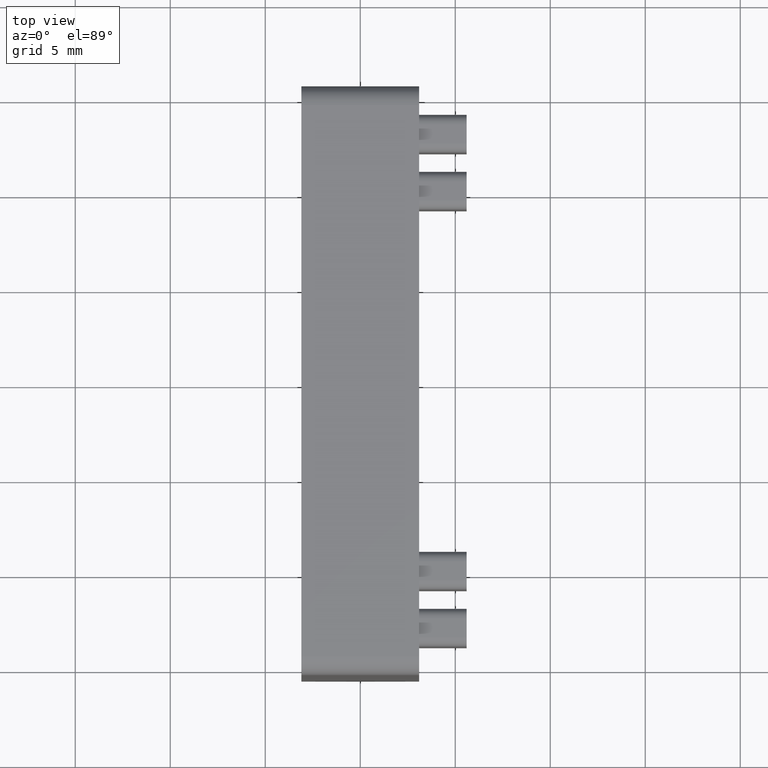
[diagram: clean part render]
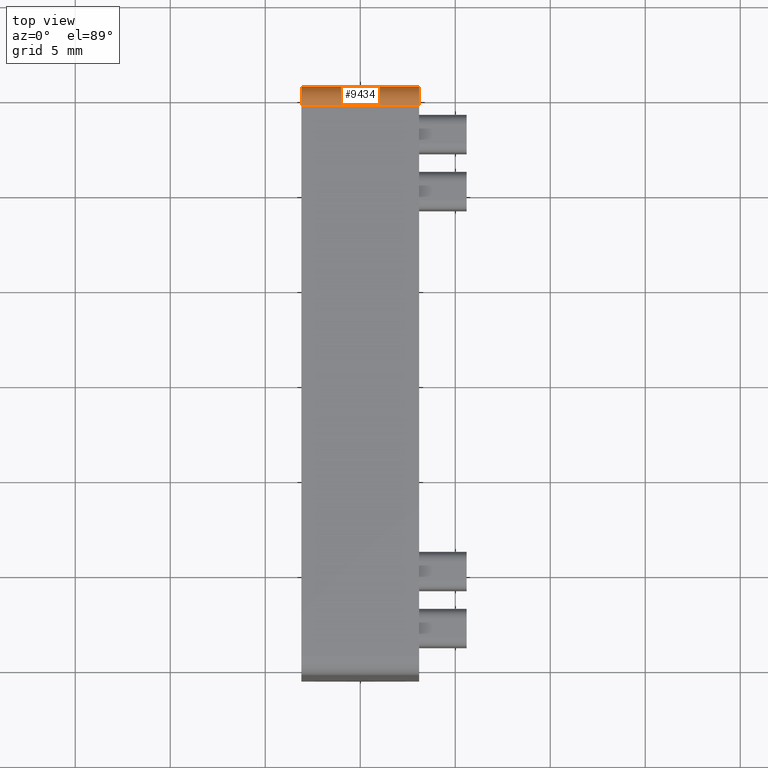
[diagram: same view with one face highlighted and labeled with its STEP entity id]
A machine part, top view. The second image highlights one B-rep face of the part: STEP entity #9434.
In plain terms, the highlighted cylindrical surface (edge-blend (fillet) strip) has radius 1 mm, axis along (-1, -0, -0).
Its self-contained STEP definition (entity closure, byte-faithful):
#184 = CYLINDRICAL_SURFACE ( 'NONE', #16852, 1.000000000000000888 ) ;
#708 = CARTESIAN_POINT ( 'NONE',  ( 3.100000000000000089, 14.50000000000000178, 10.55000000000000782 ) ) ;
#1052 = VECTOR ( 'NONE', #8883, 1000.000000000000000 ) ;
#1429 = DIRECTION ( 'NONE',  ( 1.000000000000000000, 0.000000000000000000, 0.000000000000000000 ) ) ;
#3053 = EDGE_LOOP ( 'NONE', ( #15158, #9641, #7024, #8911 ) ) ;
#5017 = CIRCLE ( 'NONE', #13590, 1.000000000000000888 ) ;
#6123 = CIRCLE ( 'NONE', #15502, 1.000000000000000888 ) ;
#6401 = CARTESIAN_POINT ( 'NONE',  ( -3.100000000000000089, 14.50000000000000178, 10.55000000000000782 ) ) ;
#6726 = DIRECTION ( 'NONE',  ( 0.000000000000000000, 0.000000000000000000, -1.000000000000000000 ) ) ;
#6867 = DIRECTION ( 'NONE',  ( 1.000000000000000000, 0.000000000000000000, 0.000000000000000000 ) ) ;
#7024 = ORIENTED_EDGE ( 'NONE', *, *, #7920, .F. ) ;
#7039 = EDGE_CURVE ( 'NONE', #20091, #8077, #16940, .T. ) ;
#7920 = EDGE_CURVE ( 'NONE', #10921, #20091, #5017, .T. ) ;
#7938 = CARTESIAN_POINT ( 'NONE',  ( 3.100000000000000089, 15.50000000000000355, 9.550000000000006040 ) ) ;
#8077 = VERTEX_POINT ( 'NONE', #6401 ) ;
#8883 = DIRECTION ( 'NONE',  ( -1.000000000000000000, -0.000000000000000000, -0.000000000000000000 ) ) ;
#8911 = ORIENTED_EDGE ( 'NONE', *, *, #19856, .T. ) ;
#9434 = ADVANCED_FACE ( 'NONE', ( #21684 ), #184, .T. ) ;
#9641 = ORIENTED_EDGE ( 'NONE', *, *, #7039, .F. ) ;
#9870 = DIRECTION ( 'NONE',  ( 0.000000000000000000, 0.000000000000000000, -1.000000000000000000 ) ) ;
#9943 = CARTESIAN_POINT ( 'NONE',  ( 3.100000000000000089, 14.50000000000000178, 9.550000000000006040 ) ) ;
#10152 = CARTESIAN_POINT ( 'NONE',  ( 3.100000000000000089, 15.50000000000000355, 9.550000000000006040 ) ) ;
#10425 = CARTESIAN_POINT ( 'NONE',  ( -3.100000000000000089, 15.50000000000000355, 9.550000000000006040 ) ) ;
#10921 = VERTEX_POINT ( 'NONE', #10152 ) ;
#11283 = VERTEX_POINT ( 'NONE', #10425 ) ;
#11348 = DIRECTION ( 'NONE',  ( -1.000000000000000000, -0.000000000000000000, -0.000000000000000000 ) ) ;
#12713 = VECTOR ( 'NONE', #11348, 1000.000000000000000 ) ;
#13282 = CARTESIAN_POINT ( 'NONE',  ( 3.100000000000000089, 14.50000000000000178, 9.550000000000006040 ) ) ;
#13590 = AXIS2_PLACEMENT_3D ( 'NONE', #13282, #1429, #9870 ) ;
#15042 = DIRECTION ( 'NONE',  ( 0.000000000000000000, 0.000000000000000000, 1.000000000000000000 ) ) ;
#15158 = ORIENTED_EDGE ( 'NONE', *, *, #18785, .T. ) ;
#15502 = AXIS2_PLACEMENT_3D ( 'NONE', #18638, #6867, #6726 ) ;
#16852 = AXIS2_PLACEMENT_3D ( 'NONE', #9943, #21797, #15042 ) ;
#16940 = LINE ( 'NONE', #17399, #1052 ) ;
#17215 = LINE ( 'NONE', #7938, #12713 ) ;
#17399 = CARTESIAN_POINT ( 'NONE',  ( 3.100000000000000089, 14.50000000000000178, 10.55000000000000782 ) ) ;
#18638 = CARTESIAN_POINT ( 'NONE',  ( -3.100000000000000089, 14.50000000000000178, 9.550000000000006040 ) ) ;
#18785 = EDGE_CURVE ( 'NONE', #11283, #8077, #6123, .T. ) ;
#19856 = EDGE_CURVE ( 'NONE', #10921, #11283, #17215, .T. ) ;
#20091 = VERTEX_POINT ( 'NONE', #708 ) ;
#21684 = FACE_OUTER_BOUND ( 'NONE', #3053, .T. ) ;
#21797 = DIRECTION ( 'NONE',  ( -1.000000000000000000, -0.000000000000000000, -0.000000000000000000 ) ) ;